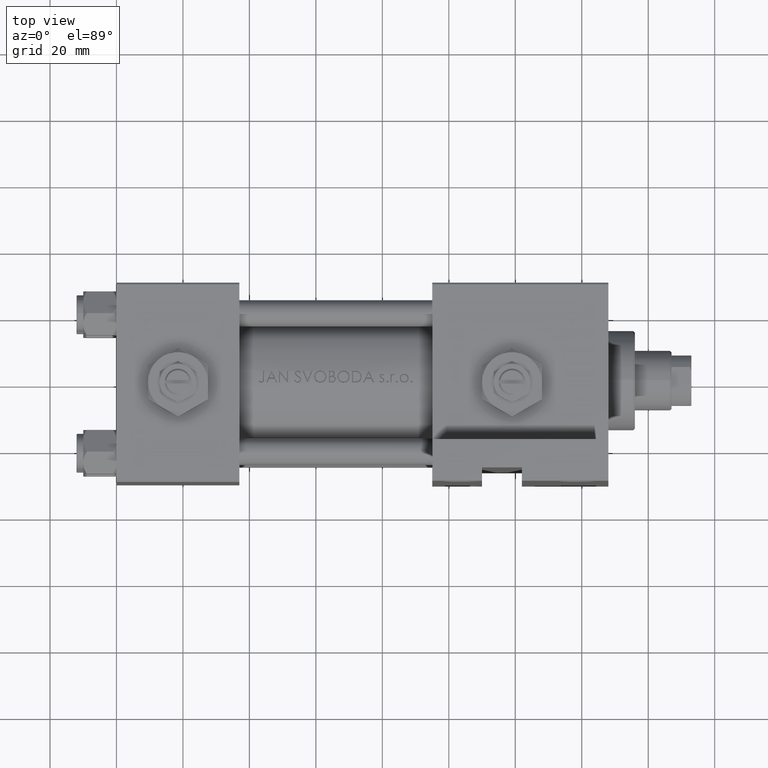
[diagram: clean part render]
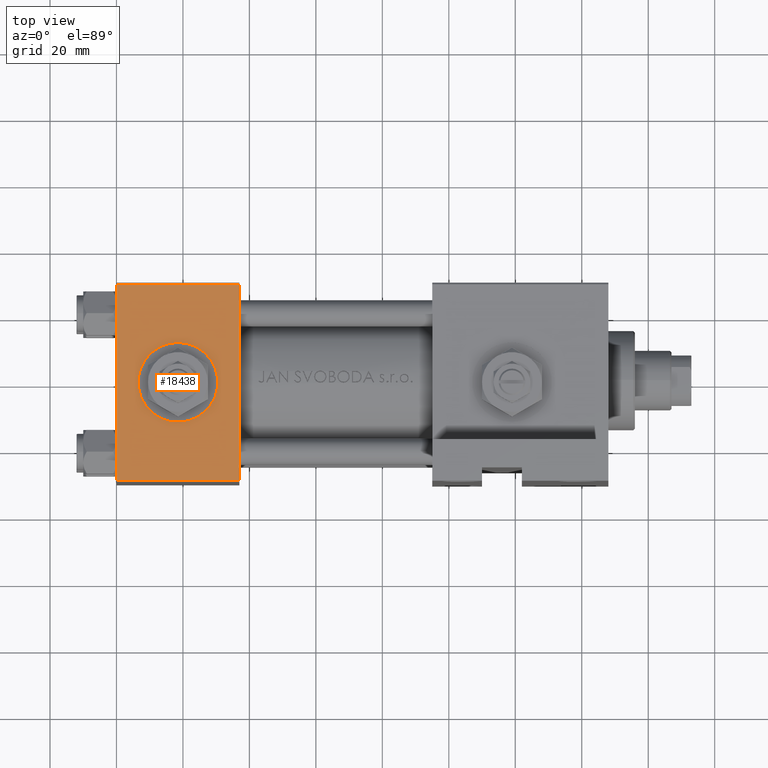
[diagram: same view with one face highlighted and labeled with its STEP entity id]
A machine part, top view. The second image highlights one B-rep face of the part: STEP entity #18438.
In plain terms, the highlighted planar face has unit normal (0, 0, -1).
Its self-contained STEP definition (entity closure, byte-faithful):
#70 = DIRECTION ( 'NONE',  ( 0.000000000000000000, 0.000000000000000000, -1.000000000000000000 ) ) ;
#453 = DIRECTION ( 'NONE',  ( 0.000000000000000000, 0.000000000000000000, -1.000000000000000000 ) ) ;
#3251 = DIRECTION ( 'NONE',  ( 0.000000000000000000, 0.000000000000000000, -1.000000000000000000 ) ) ;
#3404 = CARTESIAN_POINT ( 'NONE',  ( 18.50000000000000000, -30.00000000000000000, 12.00000000000000178 ) ) ;
#4018 = ORIENTED_EDGE ( 'NONE', *, *, #5166, .T. ) ;
#4274 = VECTOR ( 'NONE', #453, 1000.000000000000000 ) ;
#5166 = EDGE_CURVE ( 'NONE', #21774, #33873, #12585, .T. ) ;
#5507 = DIRECTION ( 'NONE',  ( 0.000000000000000000, -1.000000000000000000, -8.673617379884036705E-17 ) ) ;
#7085 = CARTESIAN_POINT ( 'NONE',  ( 37.00000000000000000, -30.00000000000000000, 29.49999999999999289 ) ) ;
#7827 = CARTESIAN_POINT ( 'NONE',  ( 37.00000000000000000, -30.00000000000000000, 29.49999999999999289 ) ) ;
#8316 = VERTEX_POINT ( 'NONE', #7085 ) ;
#8385 = EDGE_CURVE ( 'NONE', #8316, #22869, #39386, .T. ) ;
#9911 = CARTESIAN_POINT ( 'NONE',  ( 37.00000000000000000, -30.00000000000000000, 29.99999999999999289 ) ) ;
#10224 = ORIENTED_EDGE ( 'NONE', *, *, #38638, .F. ) ;
#12585 = LINE ( 'NONE', #28249, #39264 ) ;
#15989 = EDGE_CURVE ( 'NONE', #22869, #21774, #24540, .T. ) ;
#17197 = DIRECTION ( 'NONE',  ( 1.000000000000000000, 0.000000000000000000, 0.000000000000000000 ) ) ;
#18305 = AXIS2_PLACEMENT_3D ( 'NONE', #9911, #37630, #25563 ) ;
#18438 = ADVANCED_FACE ( 'NONE', ( #37130, #21197 ), #45098, .F. ) ;
#19665 = VECTOR ( 'NONE', #39139, 1000.000000000000000 ) ;
#19792 = CARTESIAN_POINT ( 'NONE',  ( 18.50000000000000000, -30.00000000000000000, 0.000000000000000000 ) ) ;
#19912 = CARTESIAN_POINT ( 'NONE',  ( 0.000000000000000000, -30.00000000000000000, 29.99999999999999289 ) ) ;
#19937 = AXIS2_PLACEMENT_3D ( 'NONE', #36804, #5507, #36551 ) ;
#21197 = FACE_OUTER_BOUND ( 'NONE', #33425, .T. ) ;
#21726 = CARTESIAN_POINT ( 'NONE',  ( 18.50000000000000000, -30.00000000000000000, -12.00000000000000178 ) ) ;
#21774 = VERTEX_POINT ( 'NONE', #31609 ) ;
#21825 = EDGE_CURVE ( 'NONE', #46793, #26743, #22507, .T. ) ;
#22507 = CIRCLE ( 'NONE', #23340, 12.00000000000000178 ) ;
#22616 = EDGE_LOOP ( 'NONE', ( #38201, #41009 ) ) ;
#22869 = VERTEX_POINT ( 'NONE', #27707 ) ;
#23340 = AXIS2_PLACEMENT_3D ( 'NONE', #19792, #35213, #70 ) ;
#24540 = LINE ( 'NONE', #19912, #4274 ) ;
#25563 = DIRECTION ( 'NONE',  ( 0.000000000000000000, -0.000000000000000000, 1.000000000000000000 ) ) ;
#26743 = VERTEX_POINT ( 'NONE', #3404 ) ;
#27707 = CARTESIAN_POINT ( 'NONE',  ( 0.000000000000000000, -30.00000000000000000, 29.49999999999999289 ) ) ;
#28161 = CIRCLE ( 'NONE', #19937, 12.00000000000000178 ) ;
#28249 = CARTESIAN_POINT ( 'NONE',  ( 37.00000000000000000, -30.00000000000000000, -29.50000000000001776 ) ) ;
#31609 = CARTESIAN_POINT ( 'NONE',  ( 0.000000000000000000, -30.00000000000000000, -29.50000000000001776 ) ) ;
#33425 = EDGE_LOOP ( 'NONE', ( #41078, #4018, #10224, #39040 ) ) ;
#33873 = VERTEX_POINT ( 'NONE', #45849 ) ;
#34079 = EDGE_CURVE ( 'NONE', #26743, #46793, #28161, .T. ) ;
#34724 = VECTOR ( 'NONE', #3251, 1000.000000000000000 ) ;
#35213 = DIRECTION ( 'NONE',  ( 0.000000000000000000, -1.000000000000000000, -8.673617379884036705E-17 ) ) ;
#36551 = DIRECTION ( 'NONE',  ( 0.000000000000000000, 0.000000000000000000, -1.000000000000000000 ) ) ;
#36804 = CARTESIAN_POINT ( 'NONE',  ( 18.50000000000000000, -30.00000000000000000, 0.000000000000000000 ) ) ;
#37130 = FACE_BOUND ( 'NONE', #22616, .T. ) ;
#37630 = DIRECTION ( 'NONE',  ( -0.000000000000000000, 1.000000000000000000, 0.000000000000000000 ) ) ;
#38201 = ORIENTED_EDGE ( 'NONE', *, *, #21825, .F. ) ;
#38638 = EDGE_CURVE ( 'NONE', #8316, #33873, #42511, .T. ) ;
#39040 = ORIENTED_EDGE ( 'NONE', *, *, #8385, .T. ) ;
#39139 = DIRECTION ( 'NONE',  ( -1.000000000000000000, 0.000000000000000000, 0.000000000000000000 ) ) ;
#39264 = VECTOR ( 'NONE', #17197, 1000.000000000000000 ) ;
#39386 = LINE ( 'NONE', #7827, #19665 ) ;
#41009 = ORIENTED_EDGE ( 'NONE', *, *, #34079, .F. ) ;
#41078 = ORIENTED_EDGE ( 'NONE', *, *, #15989, .T. ) ;
#42511 = LINE ( 'NONE', #45360, #34724 ) ;
#45098 = PLANE ( 'NONE',  #18305 ) ;
#45360 = CARTESIAN_POINT ( 'NONE',  ( 37.00000000000000000, -30.00000000000000000, 29.99999999999999289 ) ) ;
#45849 = CARTESIAN_POINT ( 'NONE',  ( 37.00000000000000000, -30.00000000000000000, -29.50000000000001776 ) ) ;
#46793 = VERTEX_POINT ( 'NONE', #21726 ) ;